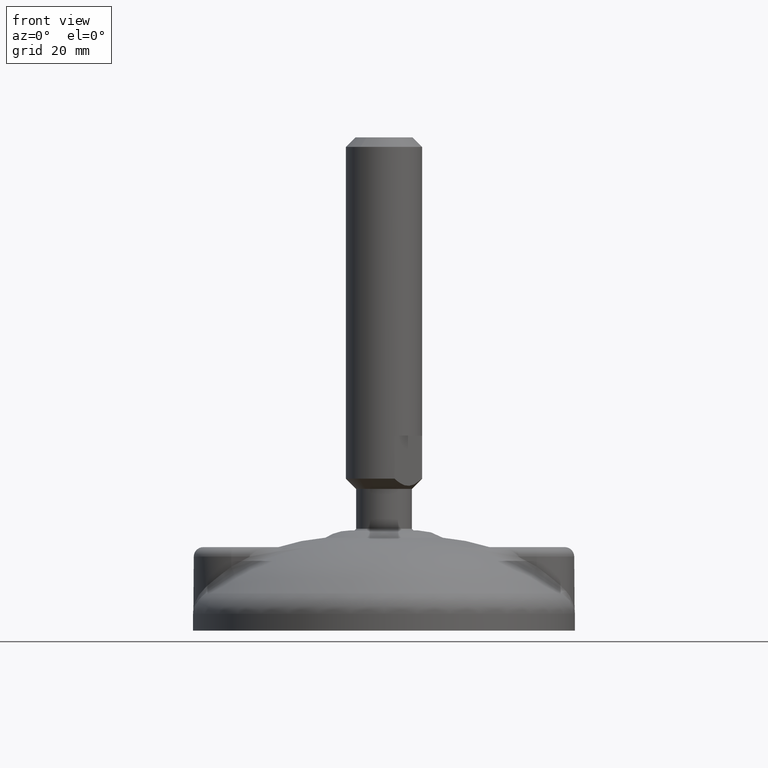
[diagram: clean part render]
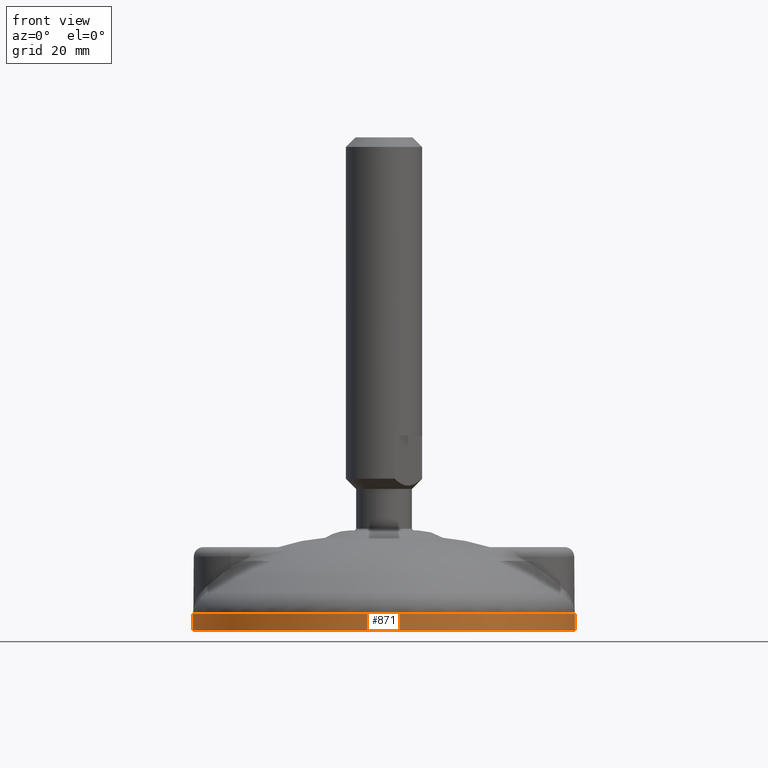
[diagram: same view with one face highlighted and labeled with its STEP entity id]
A machine part, front view. The second image highlights one B-rep face of the part: STEP entity #871.
In plain terms, the highlighted cylindrical surface (bore or boss wall) has radius 40 mm, axis along (0, 0, -1).
Its self-contained STEP definition (entity closure, byte-faithful):
#83=CYLINDRICAL_SURFACE('',#988,40.);
#111=LINE('',#2071,#139);
#139=VECTOR('',#1206,40.);
#194=FACE_OUTER_BOUND('',#246,.T.);
#246=EDGE_LOOP('',(#750,#751,#752,#753));
#276=CIRCLE('',#937,40.);
#305=CIRCLE('',#987,40.);
#354=VERTEX_POINT('',#1638);
#384=VERTEX_POINT('',#2068);
#449=EDGE_CURVE('',#354,#354,#276,.T.);
#506=EDGE_CURVE('',#384,#384,#305,.T.);
#507=EDGE_CURVE('',#384,#354,#111,.T.);
#750=ORIENTED_EDGE('',*,*,#506,.F.);
#751=ORIENTED_EDGE('',*,*,#507,.T.);
#752=ORIENTED_EDGE('',*,*,#449,.F.);
#753=ORIENTED_EDGE('',*,*,#507,.F.);
#871=ADVANCED_FACE('',(#194),#83,.T.);
#937=AXIS2_PLACEMENT_3D('',#1640,#1086,#1087);
#987=AXIS2_PLACEMENT_3D('',#2069,#1202,#1203);
#988=AXIS2_PLACEMENT_3D('',#2070,#1204,#1205);
#1086=DIRECTION('center_axis',(0.,0.,1.));
#1087=DIRECTION('ref_axis',(-1.,0.,0.));
#1202=DIRECTION('center_axis',(0.,0.,-1.));
#1203=DIRECTION('ref_axis',(1.,0.,0.));
#1204=DIRECTION('center_axis',(0.,0.,-1.));
#1205=DIRECTION('ref_axis',(1.,0.,0.));
#1206=DIRECTION('',(0.,0.,1.));
#1638=CARTESIAN_POINT('',(-40.,4.89858719658941E-15,0.));
#1640=CARTESIAN_POINT('Origin',(0.,0.,0.));
#2068=CARTESIAN_POINT('',(-40.,4.89858719658941E-15,-3.5));
#2069=CARTESIAN_POINT('Origin',(0.,0.,-3.5));
#2070=CARTESIAN_POINT('Origin',(0.,0.,0.));
#2071=CARTESIAN_POINT('',(-40.,4.89858719658941E-15,0.));